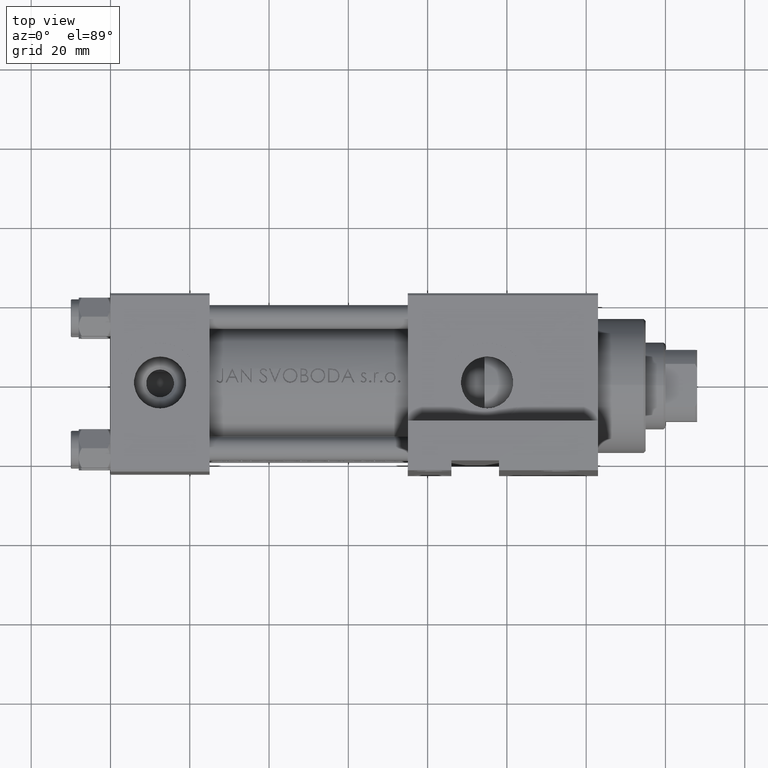
[diagram: clean part render]
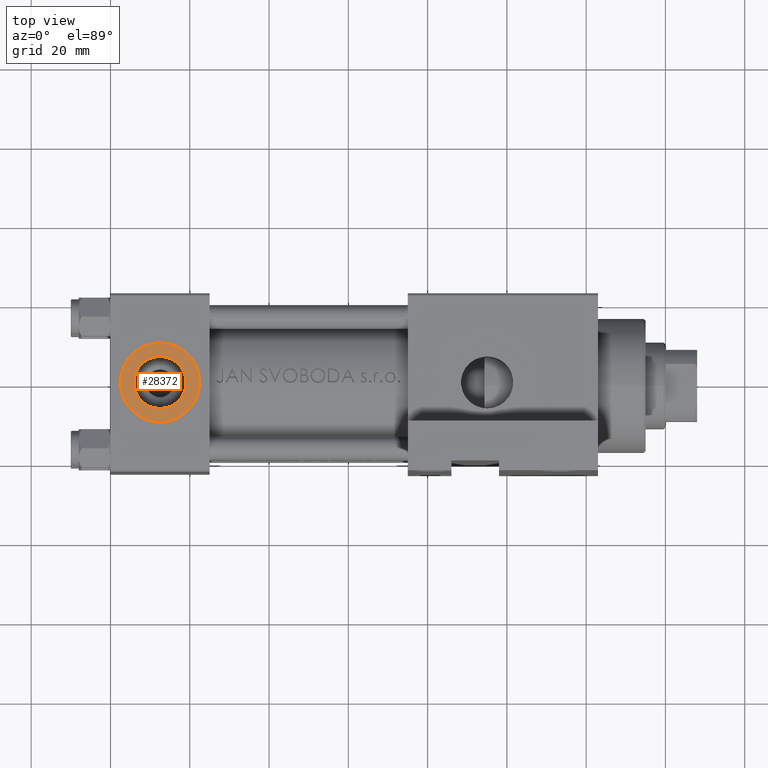
[diagram: same view with one face highlighted and labeled with its STEP entity id]
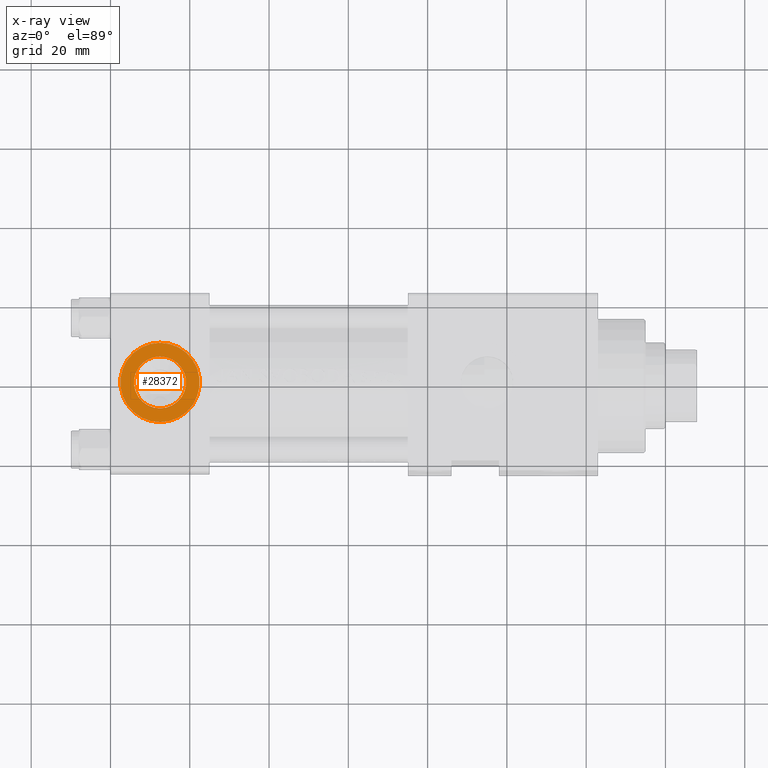
[diagram: x-ray of the same camera — body ghosted, the highlighted face saturated]
A machine part, top view. The second image highlights one B-rep face of the part: STEP entity #28372.
The next image is the same camera in x-ray: the body ghosted, the highlighted face saturated — about 0% of this face is hidden behind the body in this view.
In plain terms, the highlighted planar face has unit normal (0, -0, 1).
Its self-contained STEP definition (entity closure, byte-faithful):
#1706 = ORIENTED_EDGE ( 'NONE', *, *, #37451, .F. ) ;
#3240 = ORIENTED_EDGE ( 'NONE', *, *, #17319, .F. ) ;
#3573 = CARTESIAN_POINT ( 'NONE',  ( 12.50000000000000000, -22.30000000000000071, 1.734723475976807403E-17 ) ) ;
#3805 = CARTESIAN_POINT ( 'NONE',  ( 12.50000000000000000, -22.30000000000000071, 6.579999999999998295 ) ) ;
#8615 = DIRECTION ( 'NONE',  ( 0.000000000000000000, 0.000000000000000000, -1.000000000000000000 ) ) ;
#10170 = VERTEX_POINT ( 'NONE', #3805 ) ;
#10515 = DIRECTION ( 'NONE',  ( 0.000000000000000000, -1.000000000000000000, -8.673617379884036705E-17 ) ) ;
#11667 = AXIS2_PLACEMENT_3D ( 'NONE', #19562, #33788, #27264 ) ;
#12244 = CARTESIAN_POINT ( 'NONE',  ( 12.50000000000000000, -22.30000000000000071, 1.734723475976808635E-17 ) ) ;
#12540 = CARTESIAN_POINT ( 'NONE',  ( 12.50000000000000000, -22.30000000000000071, -6.579999999999998295 ) ) ;
#13765 = VERTEX_POINT ( 'NONE', #12540 ) ;
#13923 = DIRECTION ( 'NONE',  ( 0.000000000000000000, 8.673617379884036705E-17, -1.000000000000000000 ) ) ;
#16150 = ORIENTED_EDGE ( 'NONE', *, *, #24345, .T. ) ;
#17223 = CARTESIAN_POINT ( 'NONE',  ( 12.50000000000000178, -22.30000000000000071, 9.999999999999996447 ) ) ;
#17319 = EDGE_CURVE ( 'NONE', #10170, #13765, #37301, .T. ) ;
#19562 = CARTESIAN_POINT ( 'NONE',  ( 12.50000000000000000, -22.30000000000000071, 1.734723475976808635E-17 ) ) ;
#19624 = VERTEX_POINT ( 'NONE', #17223 ) ;
#22099 = ORIENTED_EDGE ( 'NONE', *, *, #36496, .T. ) ;
#22858 = VERTEX_POINT ( 'NONE', #28759 ) ;
#23325 = EDGE_LOOP ( 'NONE', ( #16150, #22099 ) ) ;
#24345 = EDGE_CURVE ( 'NONE', #22858, #19624, #36011, .T. ) ;
#24534 = EDGE_LOOP ( 'NONE', ( #1706, #3240 ) ) ;
#25245 = DIRECTION ( 'NONE',  ( 0.000000000000000000, -1.000000000000000000, -8.673617379884036705E-17 ) ) ;
#25528 = CIRCLE ( 'NONE', #11667, 6.579999999999998295 ) ;
#25728 = AXIS2_PLACEMENT_3D ( 'NONE', #12244, #41678, #8615 ) ;
#27264 = DIRECTION ( 'NONE',  ( 0.000000000000000000, 0.000000000000000000, -1.000000000000000000 ) ) ;
#28366 = DIRECTION ( 'NONE',  ( 0.000000000000000000, 0.000000000000000000, -1.000000000000000000 ) ) ;
#28372 = ADVANCED_FACE ( 'NONE', ( #36360, #40699 ), #46993, .T. ) ;
#28759 = CARTESIAN_POINT ( 'NONE',  ( 12.50000000000000000, -22.30000000000000071, -9.999999999999996447 ) ) ;
#32280 = AXIS2_PLACEMENT_3D ( 'NONE', #3573, #25245, #13923 ) ;
#32417 = AXIS2_PLACEMENT_3D ( 'NONE', #44597, #35969, #40491 ) ;
#33788 = DIRECTION ( 'NONE',  ( 0.000000000000000000, -1.000000000000000000, -8.673617379884036705E-17 ) ) ;
#35969 = DIRECTION ( 'NONE',  ( 0.000000000000000000, -1.000000000000000000, -8.673617379884036705E-17 ) ) ;
#36011 = CIRCLE ( 'NONE', #45305, 9.999999999999996447 ) ;
#36333 = CARTESIAN_POINT ( 'NONE',  ( 12.50000000000000000, -22.30000000000000071, 1.734723475976807403E-17 ) ) ;
#36360 = FACE_BOUND ( 'NONE', #24534, .T. ) ;
#36496 = EDGE_CURVE ( 'NONE', #19624, #22858, #45580, .T. ) ;
#37301 = CIRCLE ( 'NONE', #25728, 6.579999999999998295 ) ;
#37451 = EDGE_CURVE ( 'NONE', #13765, #10170, #25528, .T. ) ;
#40491 = DIRECTION ( 'NONE',  ( 0.000000000000000000, 0.000000000000000000, -1.000000000000000000 ) ) ;
#40699 = FACE_OUTER_BOUND ( 'NONE', #23325, .T. ) ;
#41678 = DIRECTION ( 'NONE',  ( 0.000000000000000000, -1.000000000000000000, -8.673617379884036705E-17 ) ) ;
#44597 = CARTESIAN_POINT ( 'NONE',  ( 12.50000000000000000, -22.30000000000000071, 1.734723475976807403E-17 ) ) ;
#45305 = AXIS2_PLACEMENT_3D ( 'NONE', #36333, #10515, #28366 ) ;
#45580 = CIRCLE ( 'NONE', #32417, 9.999999999999996447 ) ;
#46993 = PLANE ( 'NONE',  #32280 ) ;